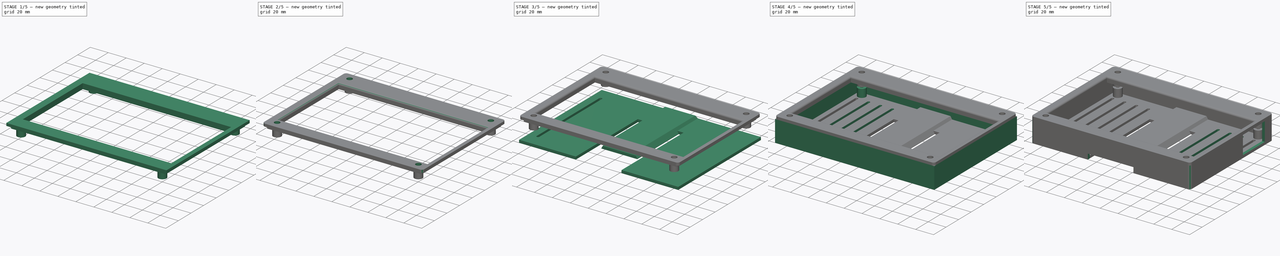
[diagram: build sequence overview — one tinted view per stage of 5, left to right]
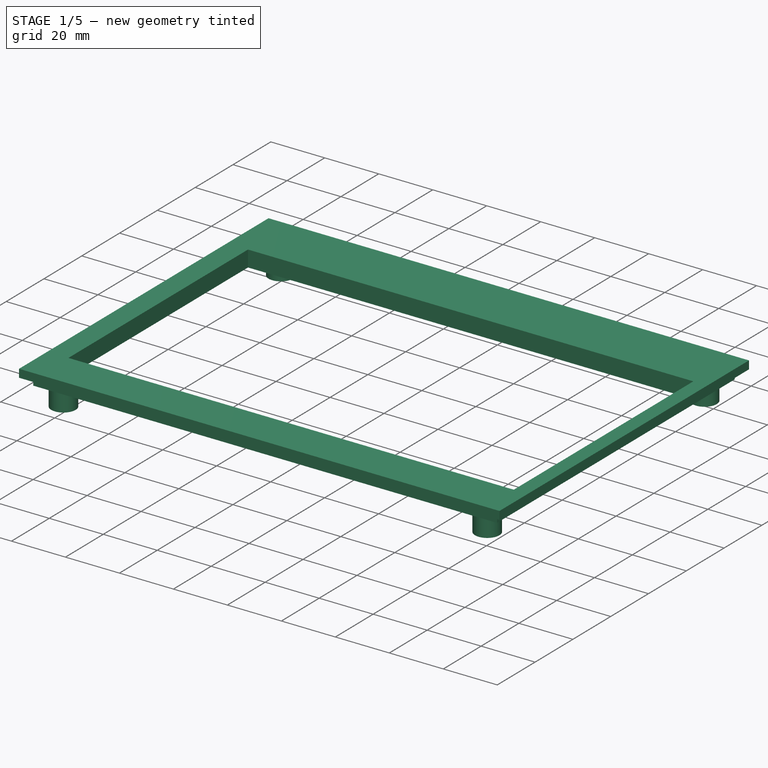
[diagram: stage 1 of 5 — iso view after this stage's code; geometry added in this stage tinted green]
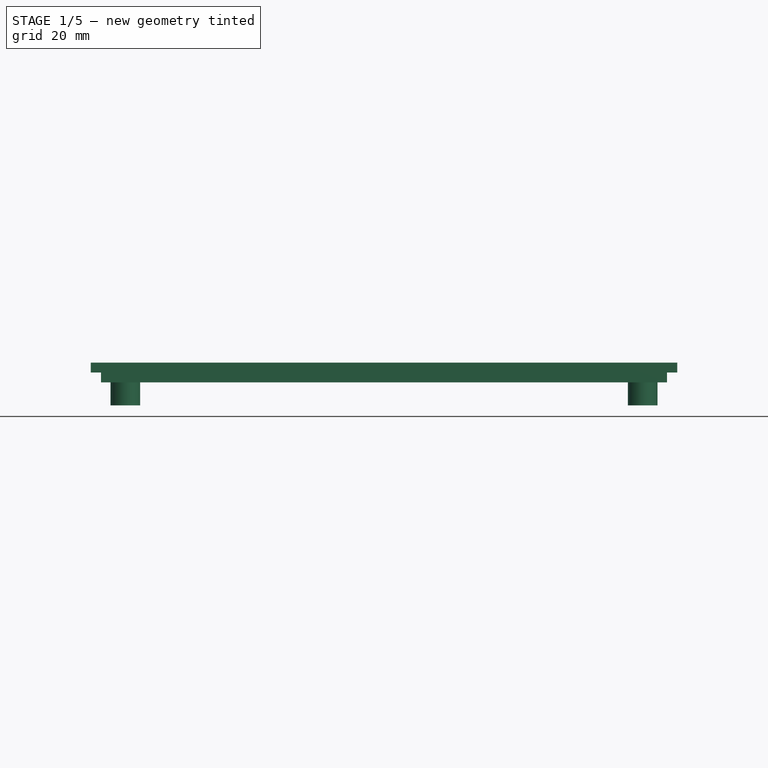
[diagram: stage 1 of 5 — front view after this stage's code; geometry added in this stage tinted green]
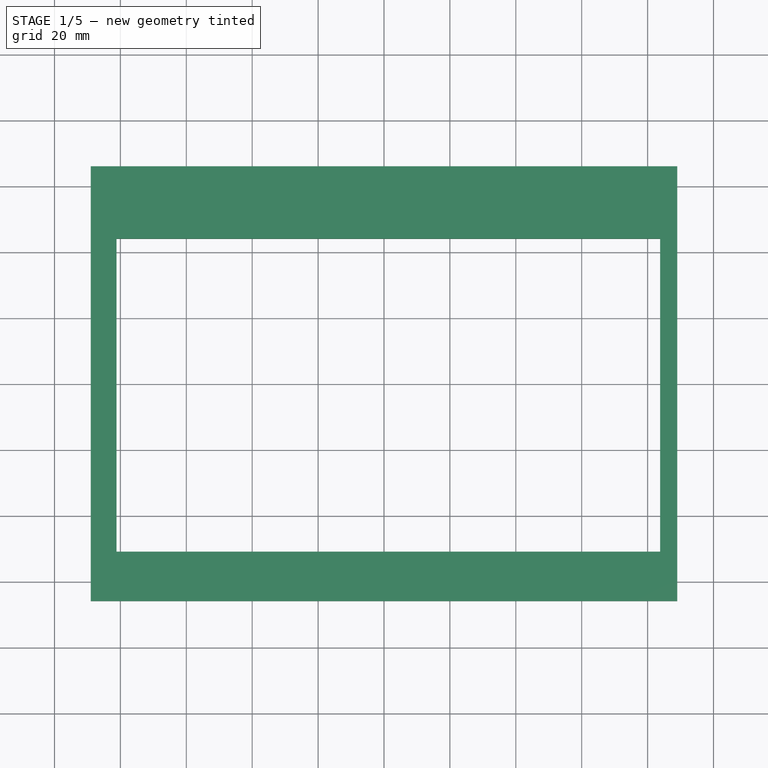
[diagram: stage 1 of 5 — top view after this stage's code; geometry added in this stage tinted green]
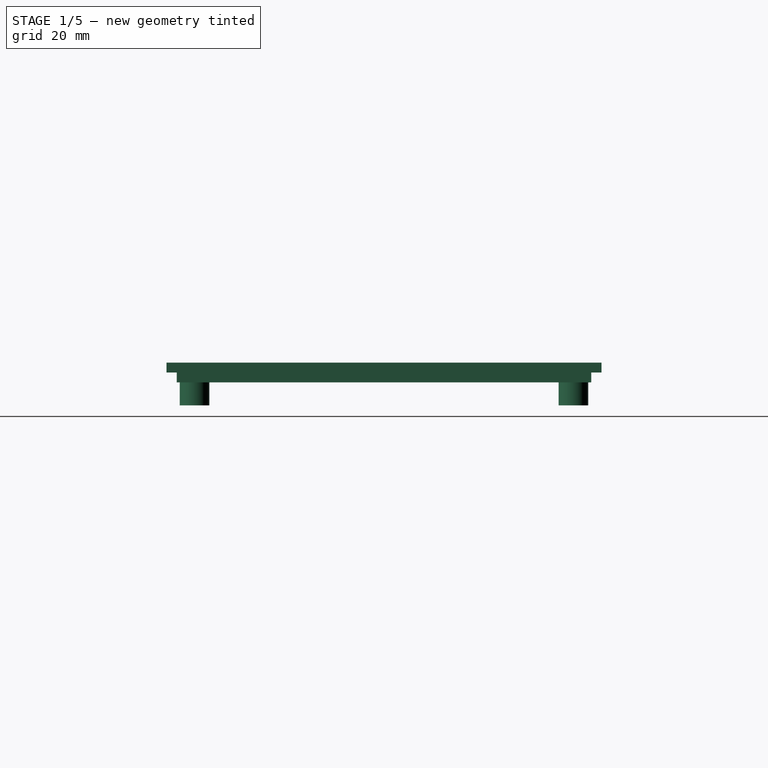
[diagram: stage 1 of 5 — right view after this stage's code; geometry added in this stage tinted green]
FCSTD DOCUMENT  (FreeCAD 0.20R29177 +426 (Git))
Label: Large Display Mount
Comment: Coffee Roaster V2 Large Display Mount
License: All rights reserved
LicenseURL: http://en.wikipedia.org/wiki/All_rights_reserved
objects: Sketcher::SketchObject×14, PartDesign::Pad×7, PartDesign::Pocket×7, PartDesign::Fillet×3, PartDesign::LinearPattern×2, PartDesign::Body×2, PartDesign::Chamfer×1
note: 54 computed .brp shape members not serialized (recipe doc carries the construction recipe); baked Part::Feature solids carry a one-line shape summary decoded from their .brp

FEATURE [PartDesign::Body] Body
  Group = -> [Sketch,Pad,Chamfer,Sketch001,Pad001,Sketch004,Pocket001,LinearPattern,Sketch006,Sketch007,Pad003,Sketch008,Pad004,Sketch009,Pocket002,LinearPattern001,Pocket,Sketch010,Pocket003,Fillet]
  Origin = -> Origin
  Tip = -> Fillet
FEATURE [Sketcher::SketchObject] Sketch011
  AttachmentOffset = pos=(0,0,24) rot=(0,0,1;0rad)
  FullyConstrained = true
  MapMode = 5
  Placement = pos=(0,0,24) rot=(0,0,1;0rad)
  Support = -> [XY_Plane001]
  sketch-geometry (4):
    g0: LineSegment StartX=-89 StartY=66 StartZ=0 EndX=89 EndY=66 EndZ=0
    g1: LineSegment StartX=89 StartY=66 StartZ=0 EndX=89 EndY=-66 EndZ=0
    g2: LineSegment StartX=89 StartY=-66 StartZ=0 EndX=-89 EndY=-66 EndZ=0
    g3: LineSegment StartX=-89 StartY=-66 StartZ=0 EndX=-89 EndY=66 EndZ=0
  constraints (11):
    c: Coincident(g0,g1)
    c: Coincident(g1,g2)
    c: Coincident(g2,g3)
    c: Coincident(g3,g0)
    c: Horizontal(g0)
    c: Horizontal(g2)
    c: Vertical(g1)
    c: Vertical(g3)
    c: DistanceX(g2,g2) = 178
    c: DistanceY(g1,g1) = 132
    c: Symmetric(g1,g0,g-1)
FEATURE [PartDesign::Pad] Pad005
  Direction = (0,0,1)
  Length = 3
  Length2 = 10
  Profile = -> Sketch011
  ReferenceAxis = -> Sketch011 [N_Axis]
  Type = 0
FEATURE [Sketcher::SketchObject] Sketch012
  ExternalGeometry = -> [Pad005]
  FullyConstrained = true
  MapMode = 5
  Placement = pos=(0,0,24) rot=(1,0,0;3.14159rad)
  Support = -> [Pad005]
  sketch-geometry (4):
    g0: LineSegment StartX=-85.9 StartY=62.9 StartZ=0 EndX=85.9 EndY=62.9 EndZ=0
    g1: LineSegment StartX=85.9 StartY=62.9 StartZ=0 EndX=85.9 EndY=-62.9 EndZ=0
    g2: LineSegment StartX=85.9 StartY=-62.9 StartZ=0 EndX=-85.9 EndY=-62.9 EndZ=0
    g3: LineSegment StartX=-85.9 StartY=-62.9 StartZ=0 EndX=-85.9 EndY=62.9 EndZ=0
  constraints (11):
    c: Coincident(g0,g1)
    c: Coincident(g1,g2)
    c: Coincident(g2,g3)
    c: Coincident(g3,g0)
    c: Horizontal(g0)
    c: Horizontal(g2)
    c: Vertical(g1)
    c: Vertical(g3)
    c: DistanceX(g-3,g0) = 3.1
    c: DistanceY(g0,g-3) = 3.1
    c: Symmetric(g0,g1,g-1)
FEATURE [PartDesign::Pad] Pad006
  BaseFeature = -> Pad005
  Direction = (0,0,-1)
  Length = 3
  Length2 = 10
  Profile = -> Sketch012
  ReferenceAxis = -> Sketch012 [N_Axis]
  Type = 0
FEATURE [Sketcher::SketchObject] Sketch013
  ExternalGeometry = -> [Pad006]
  FullyConstrained = true
  MapMode = 5
  Placement = pos=(0,0,27) rot=(0,0,1;0rad)
  Support = -> [Pad006]
  sketch-geometry (4):
    g0: LineSegment StartX=-81.2 StartY=44 StartZ=0 EndX=83.8 EndY=44 EndZ=0
    g1: LineSegment StartX=83.8 StartY=44 StartZ=0 EndX=83.8 EndY=-51 EndZ=0
    g2: LineSegment StartX=83.8 StartY=-51 StartZ=0 EndX=-81.2 EndY=-51 EndZ=0
    g3: LineSegment StartX=-81.2 StartY=-51 StartZ=0 EndX=-81.2 EndY=44 EndZ=0
  constraints (12):
    c: Coincident(g0,g1)
    c: Coincident(g1,g2)
    c: Coincident(g2,g3)
    c: Coincident(g3,g0)
    c: Horizontal(g0)
    c: Horizontal(g2)
    c: Vertical(g1)
    c: Vertical(g3)
    c: DistanceX(g0,g-3) = 5.2
    c: DistanceX(g-4,g0) = 7.8
    c: DistanceY(g0,g-3) = 22
    c: DistanceY(g1,g1) = 95
FEATURE [PartDesign::Pocket] Pocket004
  BaseFeature = -> Pad006
  Direction = (0,0,-1)
  Length = 6
  Length2 = 5
  Profile = -> Sketch013
  ReferenceAxis = -> Sketch013 [N_Axis]
  Type = 0
FEATURE [Sketcher::SketchObject] Sketch014
  FullyConstrained = true
  MapMode = 5
  Placement = pos=(0,0,21) rot=(1,0,0;3.14159rad)
  Support = -> [Pocket004]
  sketch-geometry (8):
    g0: Circle CenterX=-78.5 CenterY=57.5 CenterZ=0 NormalX=0 NormalY=0 NormalZ=1 AngleXU=0 Radius=1.75
    g1: Circle CenterX=78.5 CenterY=57.5 CenterZ=0 NormalX=0 NormalY=0 NormalZ=1 AngleXU=0 Radius=1.75
    g2: Circle CenterX=78.5 CenterY=-57.5 CenterZ=0 NormalX=0 NormalY=0 NormalZ=1 AngleXU=0 Radius=1.75
    g3: Circle CenterX=-78.5 CenterY=-57.5 CenterZ=0 NormalX=0 NormalY=0 NormalZ=1 AngleXU=0 Radius=1.75
    g4: Circle CenterX=-78.5 CenterY=57.5 CenterZ=0 NormalX=0 NormalY=0 NormalZ=1 AngleXU=0 Radius=4.5
    g5: Circle CenterX=78.5 CenterY=57.5 CenterZ=0 NormalX=0 NormalY=0 NormalZ=1 AngleXU=0 Radius=4.5
    g6: Circle CenterX=-78.5 CenterY=-57.5 CenterZ=0 NormalX=0 NormalY=0 NormalZ=1 AngleXU=0 Radius=4.5
    g7: Circle CenterX=78.5 CenterY=-57.5 CenterZ=0 NormalX=0 NormalY=0 NormalZ=1 AngleXU=0 Radius=4.5
  constraints (19):
    c: Coincident(g4,g0)
    c: Coincident(g5,g1)
    c: Coincident(g6,g3)
    c: Coincident(g7,g2)
    c: Equal(g4,g5)
    c: Equal(g5,g7)
    c: Equal(g7,g6)
    c: Equal(g0,g1)
    c: Equal(g1,g3)
    c: Equal(g3,g2)
    c: Diameter(g0) = 3.5
    c: Diameter(g4) = 9
    c: Vertical(g3,g0)
    c: Horizontal(g0,g1)
    c: Horizontal(g3,g2)
    c: Vertical(g2,g1)
    c: Symmetric(g3,g1,g-1)
    c: DistanceX(g0,g1) = 157
    c: DistanceY(g2,g1) = 115
FEATURE [PartDesign::Pad] Pad007
  BaseFeature = -> Pocket004
  Direction = (0,0,-1)
  Length = 7
  Length2 = 10
  Profile = -> Sketch014
  ReferenceAxis = -> Sketch014 [N_Axis]
  Type = 0
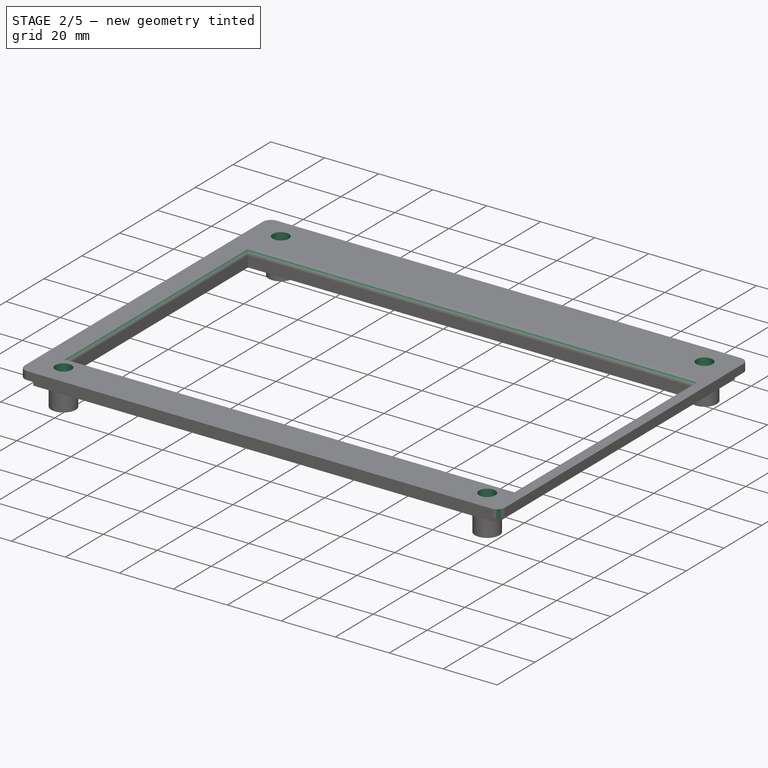
[diagram: stage 2 of 5 — iso view after this stage's code; geometry added in this stage tinted green]
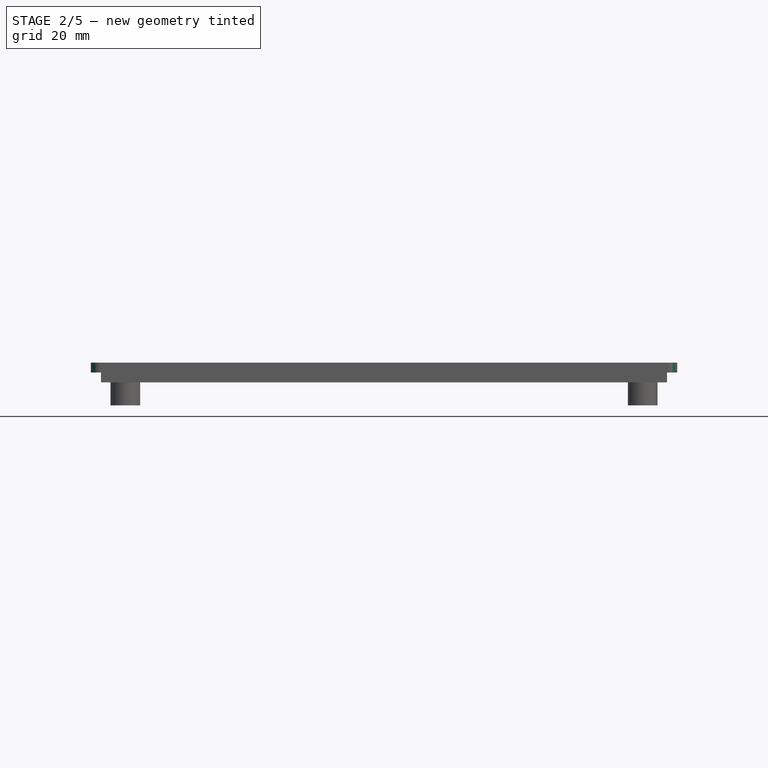
[diagram: stage 2 of 5 — front view after this stage's code; geometry added in this stage tinted green]
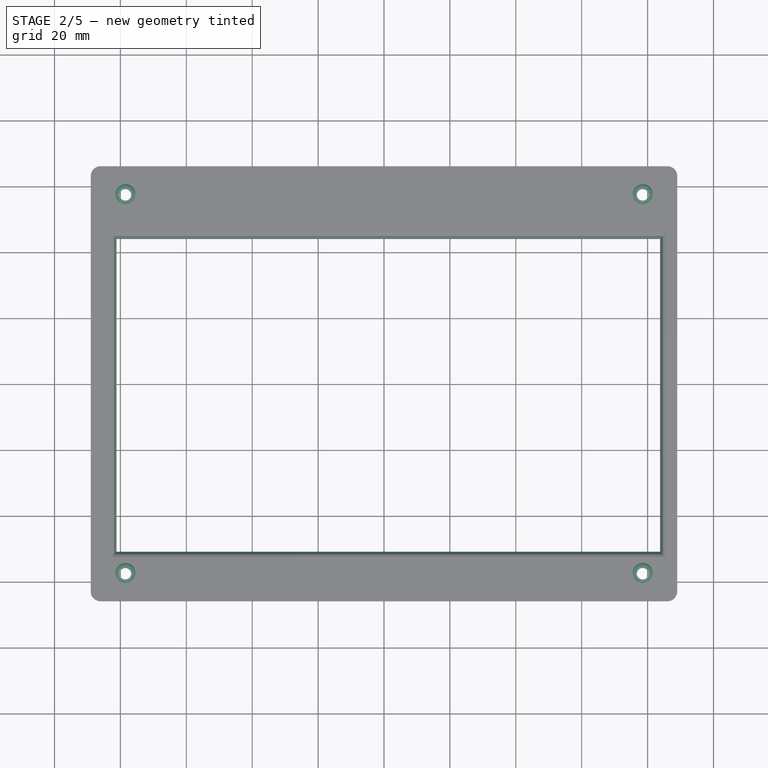
[diagram: stage 2 of 5 — top view after this stage's code; geometry added in this stage tinted green]
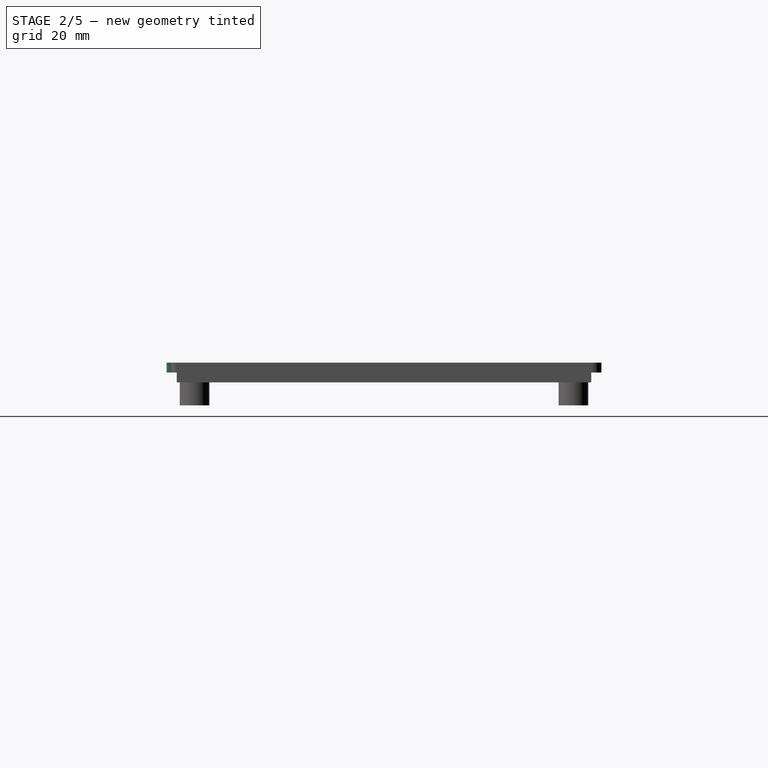
[diagram: stage 2 of 5 — right view after this stage's code; geometry added in this stage tinted green]
FEATURE [Sketcher::SketchObject] Sketch015
  FullyConstrained = true
  MapMode = 5
  Placement = pos=(0,0,27) rot=(0,0,1;0rad)
  Support = -> [Pad007]
  sketch-geometry (4):
    g0: Circle CenterX=-78.5 CenterY=57.5 CenterZ=0 NormalX=0 NormalY=0 NormalZ=1 AngleXU=0 Radius=1.75
    g1: Circle CenterX=78.5 CenterY=57.5 CenterZ=0 NormalX=0 NormalY=0 NormalZ=1 AngleXU=0 Radius=1.75
    g2: Circle CenterX=-78.5 CenterY=-57.5 CenterZ=0 NormalX=0 NormalY=0 NormalZ=1 AngleXU=0 Radius=1.75
    g3: Circle CenterX=78.5 CenterY=-57.5 CenterZ=0 NormalX=0 NormalY=0 NormalZ=1 AngleXU=0 Radius=1.75
  constraints (11):
    c: Equal(g0,g1)
    c: Equal(g1,g2)
    c: Equal(g2,g3)
    c: Diameter(g0) = 3.5
    c: Vertical(g0,g2)
    c: Horizontal(g0,g1)
    c: Vertical(g1,g3)
    c: Symmetric(g0,g3,g-1)
    c: DistanceX(g0,g1) = 157
    c: DistanceY(g2,g0) = 115
    c: Horizontal(g2,g3)
FEATURE [PartDesign::Pocket] Pocket005
  BaseFeature = -> Pad007
  Direction = (0,0,-1)
  Length = 6
  Length2 = 5
  Profile = -> Sketch015
  ReferenceAxis = -> Sketch015 [N_Axis]
  Type = 0
FEATURE [PartDesign::Fillet] Fillet001
  Base = -> Pocket005 [Edge8,Edge2,Edge1,Edge5]
  BaseFeature = -> Pocket005
  Radius = 3
  SupportTransform = false
  UseAllEdges = false
FEATURE [Sketcher::SketchObject] Sketch016
  FullyConstrained = true
  MapMode = 5
  Placement = pos=(0,0,27) rot=(0,0,1;0rad)
  Support = -> [Fillet001]
  sketch-geometry (4):
    g0: Circle CenterX=-78.5 CenterY=57.5 CenterZ=0 NormalX=0 NormalY=0 NormalZ=1 AngleXU=0 Radius=3
    g1: Circle CenterX=78.5 CenterY=57.5 CenterZ=0 NormalX=0 NormalY=0 NormalZ=1 AngleXU=0 Radius=3
    g2: Circle CenterX=78.5 CenterY=-57.5 CenterZ=0 NormalX=0 NormalY=0 NormalZ=1 AngleXU=0 Radius=3
    g3: Circle CenterX=-78.5 CenterY=-57.5 CenterZ=0 NormalX=0 NormalY=0 NormalZ=1 AngleXU=0 Radius=3
  constraints (11):
    c: Equal(g0,g1)
    c: Equal(g1,g3)
    c: Equal(g3,g2)
    c: Horizontal(g0,g1)
    c: Vertical(g1,g2)
    c: Horizontal(g3,g2)
    c: Vertical(g3,g0)
    c: Symmetric(g0,g2,g-1)
    c: DistanceX(g0,g1) = 157
    c: DistanceY(g2,g1) = 115
    c: Diameter(g0) = 6
FEATURE [PartDesign::Pocket] Pocket006
  BaseFeature = -> Fillet001
  Direction = (0,0,-1)
  Length = 10
  Length2 = 5
  Profile = -> Sketch016
  ReferenceAxis = -> Sketch016 [N_Axis]
  Type = 0
FEATURE [PartDesign::Fillet] Fillet002
  Base = -> Pocket006 [Edge28,Edge27,Edge29,Edge30]
  BaseFeature = -> Pocket006
  Radius = 2
  SupportTransform = false
  UseAllEdges = false
FEATURE [PartDesign::Body] Body001  label="Front Face"
  Group = -> [Sketch011,Pad005,Sketch012,Pad006,Sketch013,Pocket004,Sketch014,Pad007,Sketch015,Pocket005,Fillet001,Sketch016,Pocket006,Fillet002]
  Origin = -> Origin001
  Tip = -> Fillet002
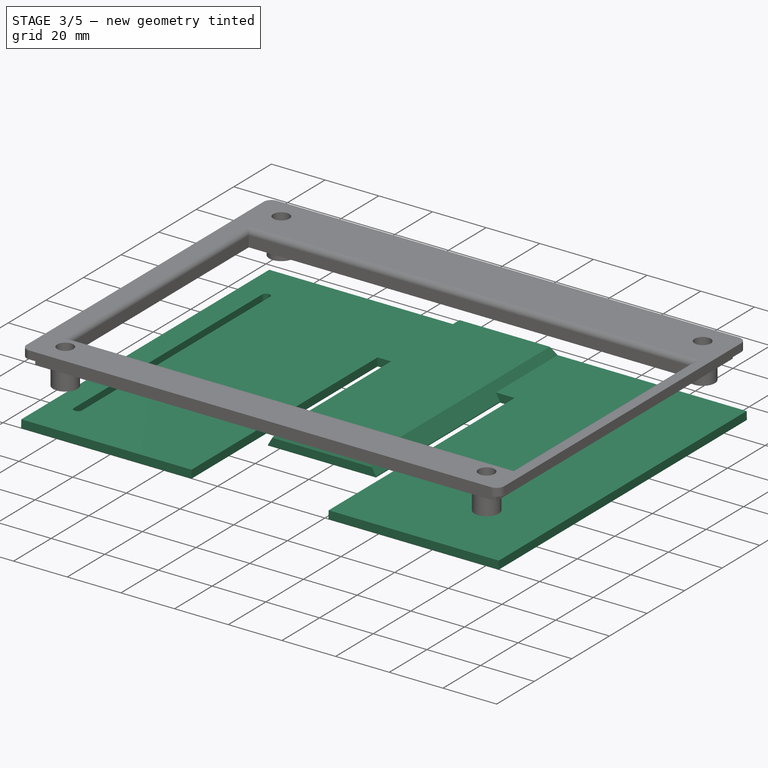
[diagram: stage 3 of 5 — iso view after this stage's code; geometry added in this stage tinted green]
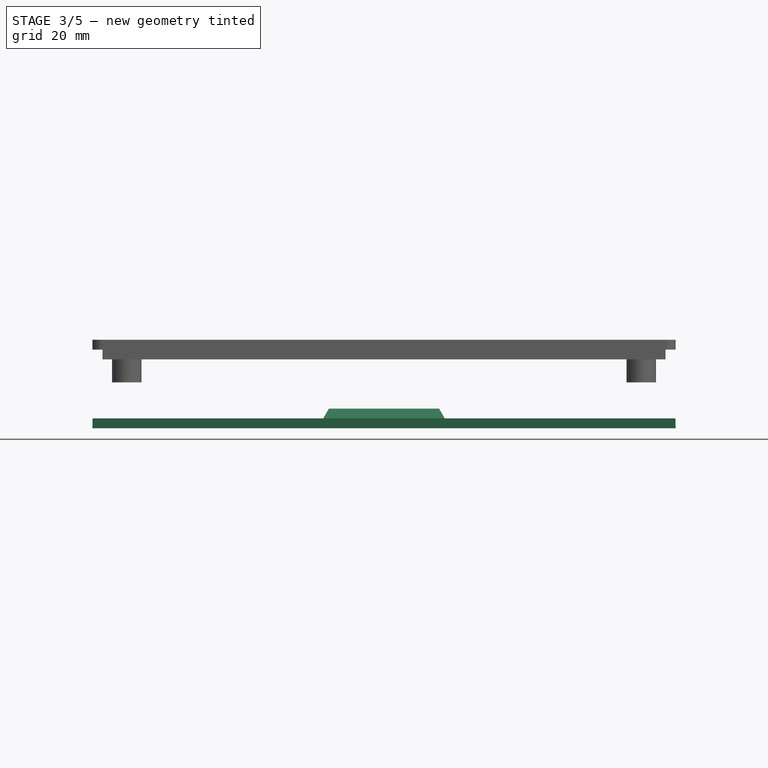
[diagram: stage 3 of 5 — front view after this stage's code; geometry added in this stage tinted green]
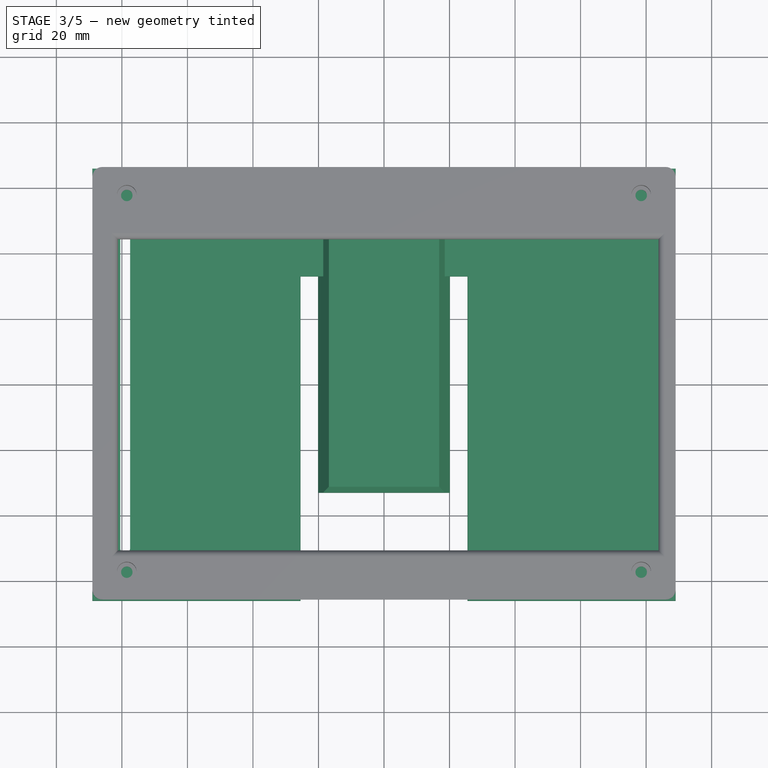
[diagram: stage 3 of 5 — top view after this stage's code; geometry added in this stage tinted green]
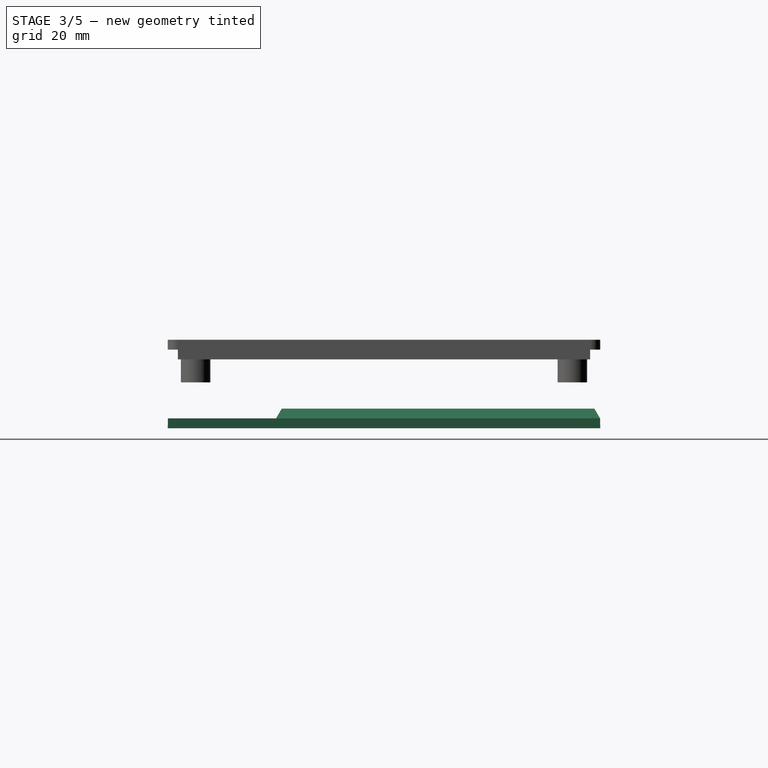
[diagram: stage 3 of 5 — right view after this stage's code; geometry added in this stage tinted green]
FEATURE [Sketcher::SketchObject] Sketch
  FullyConstrained = true
  MapMode = 5
  Support = -> [XY_Plane]
  sketch-geometry (12):
    g0: LineSegment StartX=-89 StartY=66 StartZ=0 EndX=89 EndY=66 EndZ=0
    g1: LineSegment StartX=89 StartY=66 StartZ=0 EndX=89 EndY=-66 EndZ=0
    g2: LineSegment StartX=89 StartY=-66 StartZ=0 EndX=-89 EndY=-66 EndZ=0
    g3: LineSegment StartX=-89 StartY=-66 StartZ=0 EndX=-89 EndY=66 EndZ=0
    g4: LineSegment StartX=-25.5 StartY=33 StartZ=0 EndX=-20.1 EndY=33 EndZ=0
    g5: LineSegment StartX=-20.1 StartY=33 StartZ=0 EndX=-20.1 EndY=-33 EndZ=0
    g6: LineSegment StartX=-20.1 StartY=-33 StartZ=0 EndX=20.1 EndY=-33 EndZ=0
    g7: LineSegment StartX=20.1 StartY=-33 StartZ=0 EndX=20.1 EndY=33 EndZ=0
    g8: LineSegment StartX=20.1 StartY=33 StartZ=0 EndX=25.5 EndY=33 EndZ=0
    g9: LineSegment StartX=25.5 StartY=33 StartZ=0 EndX=25.5 EndY=-66 EndZ=0
    g10: LineSegment StartX=25.5 StartY=-66 StartZ=0 EndX=-25.5 EndY=-66 EndZ=0
    g11: LineSegment StartX=-25.5 StartY=-66 StartZ=0 EndX=-25.5 EndY=33 EndZ=0
  constraints (31):
    c: Coincident(g0,g1)
    c: Coincident(g1,g2)
    c: Coincident(g2,g3)
    c: Coincident(g3,g0)
    c: Horizontal(g2)
    c: Vertical(g3)
    c: DistanceX(g0,g0) = 178
    c: DistanceY(g1,g1) = 132
    c: Symmetric(g0,g0,g-2)
    c: Symmetric(g0,g1,g-1)
    c: Coincident(g4,g5)
    c: Vertical(g5)
    c: Coincident(g5,g6)
    c: Coincident(g6,g7)
    c: Coincident(g7,g8)
    c: Horizontal(g8)
    c: Coincident(g8,g9)
    c: Vertical(g9)
    c: Coincident(g9,g10)
    c: Horizontal(g10)
    c: Coincident(g10,g11)
    c: Coincident(g11,g4)
    c: DistanceX(g4,g7) = 40.2
    c: DistanceX(g4,g8) = 51
    c: Horizontal(g4)
    c: Vertical(g11)
    c: Symmetric(g4,g8,g-2)
    c: DistanceY(g7,g7) = 66
    c: Symmetric(g7,g6,g-1)
    c: Horizontal(g9,g1)
    c: Symmetric(g5,g6,g-2)
FEATURE [PartDesign::Pad] Pad  label="Base Pad"
  Direction = (0,0,1)
  Length = 3
  Length2 = 10
  Profile = -> Sketch
  ReferenceAxis = -> Sketch [N_Axis]
  TaperAngle = -1
  Type = 0
FEATURE [PartDesign::Chamfer] Chamfer  label="Tongue Chamfer"
  Angle = 60
  Base = -> Pad [Edge21,Edge23]
  BaseFeature = -> Pad
  ChamferType = 2
  FlipDirection = false
  Size = 1.5
  Size2 = 1
  SupportTransform = false
  UseAllEdges = false
FEATURE [Sketcher::SketchObject] Sketch001
  ExternalGeometry = -> [Chamfer]
  FullyConstrained = true
  MapMode = 5
  Placement = pos=(0,0,3) rot=(0,0,1;0rad)
  Support = -> [Chamfer]
  sketch-geometry (4):
    g0: LineSegment StartX=-18.5476 StartY=-32.9476 StartZ=0 EndX=18.5476 EndY=-32.9476 EndZ=0
    g1: LineSegment StartX=18.5476 StartY=-32.9476 StartZ=0 EndX=18.5476 EndY=65.9476 EndZ=0
    g2: LineSegment StartX=18.5476 StartY=65.9476 StartZ=0 EndX=-18.5476 EndY=65.9476 EndZ=0
    g3: LineSegment StartX=-18.5476 StartY=65.9476 StartZ=0 EndX=-18.5476 EndY=-32.9476 EndZ=0
  constraints (10):
    c: Coincident(g0,g1)
    c: Coincident(g1,g2)
    c: Coincident(g2,g3)
    c: Coincident(g3,g0)
    c: Horizontal(g2)
    c: Vertical(g1)
    c: Vertical(g3)
    c: Coincident(g0,g-3)
    c: Coincident(g-4,g0)
    c: Horizontal(g2,g-5)
FEATURE [PartDesign::Pad] Pad001  label="Tongue Pad"
  BaseFeature = -> Chamfer
  Direction = (0,0,1)
  Length = 3
  Length2 = 10
  Profile = -> Sketch001
  ReferenceAxis = -> Sketch001 [N_Axis]
  TaperAngle = -30
  Type = 0
FEATURE [Sketcher::SketchObject] Sketch004
  FullyConstrained = true
  MapMode = 5
  Support = -> [XY_Plane]
  sketch-geometry (4):
    g0: ArcOfCircle CenterX=-79 CenterY=50 CenterZ=0 NormalX=0 NormalY=0 NormalZ=1 AngleXU=0 Radius=1.5 StartAngle=2.1e-15 EndAngle=3.14159
    g1: ArcOfCircle CenterX=-79 CenterY=-50 CenterZ=0 NormalX=0 NormalY=0 NormalZ=1 AngleXU=0 Radius=1.5 StartAngle=3.14159 EndAngle=6.28319
    g2: LineSegment StartX=-80.5 StartY=50 StartZ=0 EndX=-80.5 EndY=-50 EndZ=0
    g3: LineSegment StartX=-77.5 StartY=-50 StartZ=0 EndX=-77.5 EndY=50 EndZ=0
  constraints (9):
    c: Tangent(g0,g2) = -1.5708
    c: Tangent(g2,g1) = -1.5708
    c: Tangent(g1,g3) = -1.5708
    c: Tangent(g3,g0) = -1.5708
    c: Equal(g0,g1)
    c: DistanceX(g1,g1) = 3
    c: DistanceY(g3,g3) = 100
    c: Symmetric(g0,g1,g-1)
    c: DistanceX(g1,g-1) = 79
FEATURE [PartDesign::Pocket] Pocket001  label="Left Vent Hole Pocket"
  BaseFeature = -> Pad001
  Direction = (0,0,-1)
  Length = 5
  Length2 = 5
  Profile = -> Sketch004
  ReferenceAxis = -> Sketch004 [N_Axis]
  Reversed = true
  Type = 0
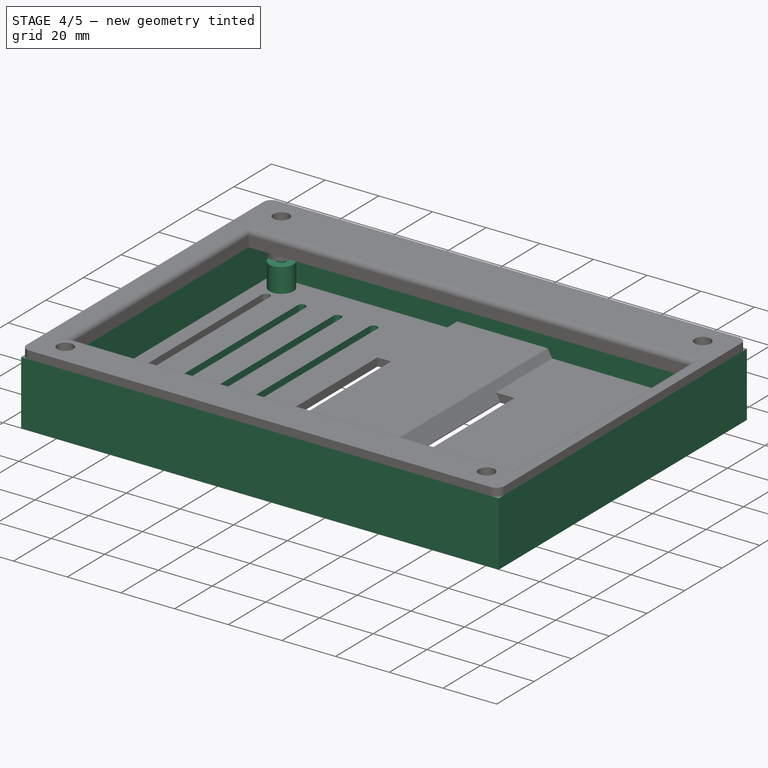
[diagram: stage 4 of 5 — iso view after this stage's code; geometry added in this stage tinted green]
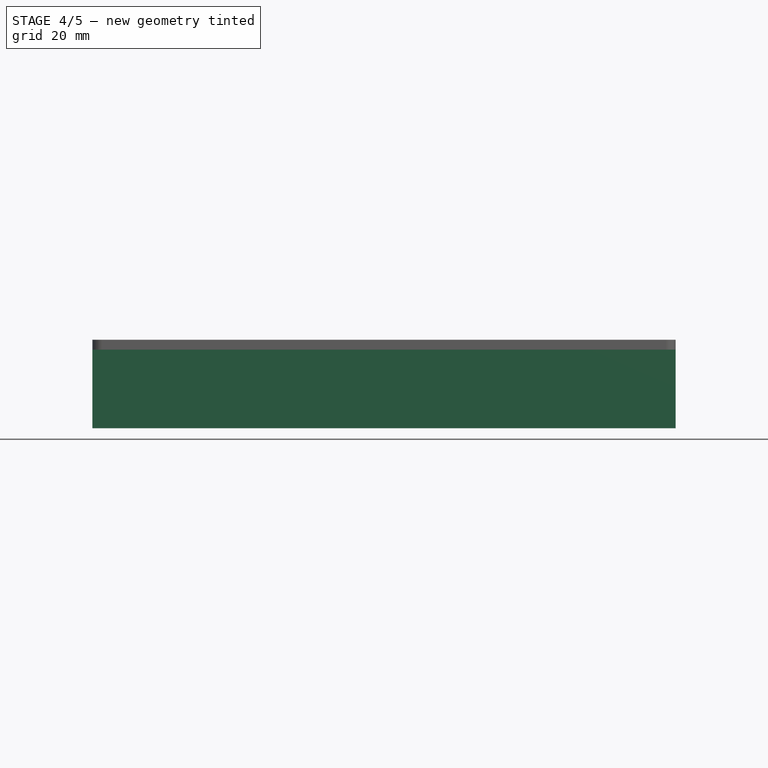
[diagram: stage 4 of 5 — front view after this stage's code; geometry added in this stage tinted green]
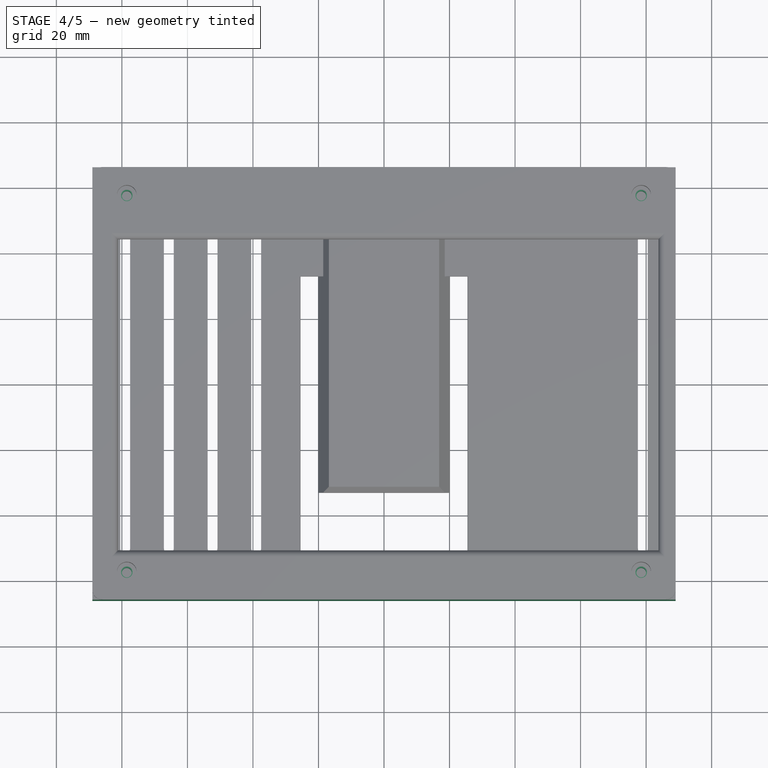
[diagram: stage 4 of 5 — top view after this stage's code; geometry added in this stage tinted green]
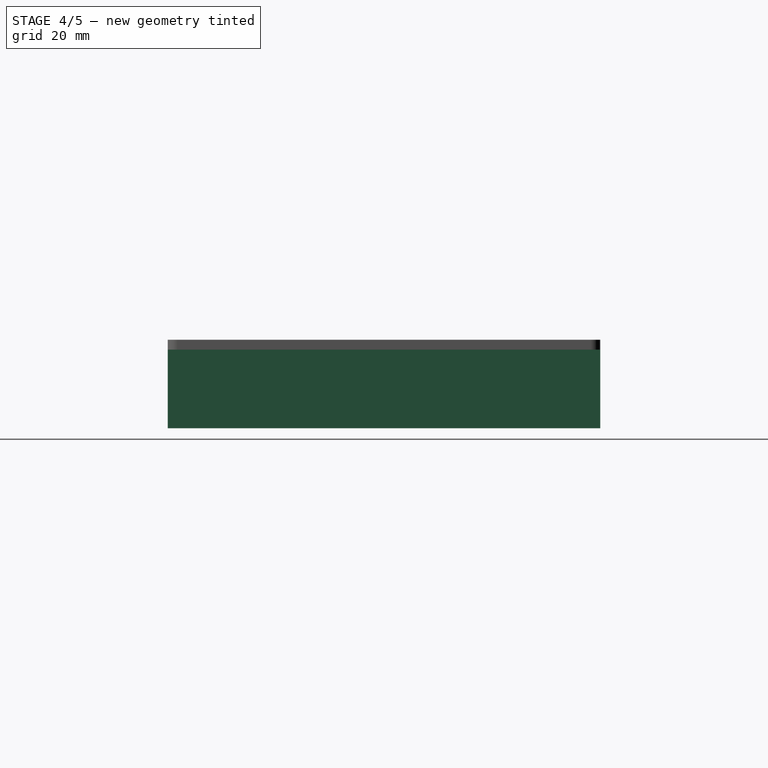
[diagram: stage 4 of 5 — right view after this stage's code; geometry added in this stage tinted green]
FEATURE [PartDesign::LinearPattern] LinearPattern
  BaseFeature = -> Pocket001
  Direction = -> Sketch004 [H_Axis]
  Length = 40
  Occurrences = 4
  Originals = -> [Pocket001]
FEATURE [Sketcher::SketchObject] Sketch006
  FullyConstrained = true
  MapMode = 5
  Support = -> [XY_Plane]
  sketch-geometry (4):
    g0: ArcOfCircle CenterX=79 CenterY=50 CenterZ=0 NormalX=0 NormalY=0 NormalZ=1 AngleXU=0 Radius=1.5 StartAngle=0 EndAngle=3.14159
    g1: ArcOfCircle CenterX=79 CenterY=-50 CenterZ=0 NormalX=0 NormalY=0 NormalZ=1 AngleXU=0 Radius=1.5 StartAngle=3.14159 EndAngle=6.28319
    g2: LineSegment StartX=77.5 StartY=50 StartZ=0 EndX=77.5 EndY=-50 EndZ=0
    g3: LineSegment StartX=80.5 StartY=-50 StartZ=0 EndX=80.5 EndY=50 EndZ=0
  constraints (9):
    c: Tangent(g0,g2) = -1.5708
    c: Tangent(g2,g1) = -1.5708
    c: Tangent(g1,g3) = -1.5708
    c: Tangent(g3,g0) = -1.5708
    c: Equal(g0,g1)
    c: DistanceX(g0,g0) = 3
    c: DistanceY(g1,g0) = 100
    c: Symmetric(g1,g0,g-1)
    c: DistanceX(g-1,g1) = 79
FEATURE [Sketcher::SketchObject] Sketch007
  AttachmentOffset = pos=(0,0,3) rot=(0,0,1;0rad)
  FullyConstrained = true
  MapMode = 5
  Placement = pos=(0,0,3) rot=(0,0,1;0rad)
  Support = -> [XY_Plane]
  sketch-geometry (8):
    g0: Circle CenterX=-78.5 CenterY=57.5 CenterZ=0 NormalX=0 NormalY=0 NormalZ=1 AngleXU=0 Radius=4.5
    g1: Circle CenterX=78.5 CenterY=57.5 CenterZ=0 NormalX=0 NormalY=0 NormalZ=1 AngleXU=0 Radius=4.5
    g2: Circle CenterX=78.5 CenterY=-57.5 CenterZ=0 NormalX=0 NormalY=0 NormalZ=1 AngleXU=0 Radius=4.5
    g3: Circle CenterX=-78.5 CenterY=-57.5 CenterZ=0 NormalX=0 NormalY=0 NormalZ=1 AngleXU=0 Radius=4.5
    g4: Circle CenterX=-78.5 CenterY=57.5 CenterZ=0 NormalX=0 NormalY=0 NormalZ=1 AngleXU=0 Radius=1.5
    g5: Circle CenterX=78.5 CenterY=57.5 CenterZ=0 NormalX=0 NormalY=0 NormalZ=1 AngleXU=0 Radius=1.5
    g6: Circle CenterX=78.5 CenterY=-57.5 CenterZ=0 NormalX=0 NormalY=0 NormalZ=1 AngleXU=0 Radius=1.5
    g7: Circle CenterX=-78.5 CenterY=-57.5 CenterZ=0 NormalX=0 NormalY=0 NormalZ=1 AngleXU=0 Radius=1.5
  constraints (19):
    c: Equal(g0,g1)
    c: Equal(g1,g2)
    c: Equal(g2,g3)
    c: Horizontal(g0,g1)
    c: Horizontal(g3,g2)
    c: Vertical(g0,g3)
    c: Vertical(g1,g2)
    c: Symmetric(g0,g2,g-1)
    c: DistanceX(g0,g1) = 157
    c: DistanceY(g2,g1) = 115
    c: Diameter(g0) = 9
    c: Coincident(g4,g0)
    c: Diameter(g4) = 3
    c: Coincident(g5,g1)
    c: Equal(g4,g5)
    c: Equal(g7,g6)
    c: Equal(g6,g4)
    c: Coincident(g7,g3)
    c: Coincident(g6,g2)
FEATURE [PartDesign::Pad] Pad003  label="Display Mount Post Pads"
  BaseFeature = -> LinearPattern
  Direction = (0,0,1)
  Length = 9
  Length2 = 10
  Profile = -> Sketch007
  ReferenceAxis = -> Sketch007 [N_Axis]
  Type = 0
FEATURE [Sketcher::SketchObject] Sketch008
  ExternalGeometry = -> [Chamfer]
  FullyConstrained = true
  MapMode = 5
  Support = -> [XY_Plane]
  sketch-geometry (8):
    g0: LineSegment StartX=-89 StartY=66 StartZ=0 EndX=89 EndY=66 EndZ=0
    g1: LineSegment StartX=89 StartY=66 StartZ=0 EndX=89 EndY=-66 EndZ=0
    g2: LineSegment StartX=89 StartY=-66 StartZ=0 EndX=-89 EndY=-66 EndZ=0
    g3: LineSegment StartX=-89 StartY=-66 StartZ=0 EndX=-89 EndY=66 EndZ=0
    g4: LineSegment StartX=-86 StartY=63 StartZ=0 EndX=86 EndY=63 EndZ=0
    g5: LineSegment StartX=86 StartY=63 StartZ=0 EndX=86 EndY=-63 EndZ=0
    g6: LineSegment StartX=86 StartY=-63 StartZ=0 EndX=-86 EndY=-63 EndZ=0
    g7: LineSegment StartX=-86 StartY=-63 StartZ=0 EndX=-86 EndY=63 EndZ=0
  constraints (20):
    c: Coincident(g0,g1)
    c: Coincident(g1,g2)
    c: Coincident(g2,g3)
    c: Coincident(g3,g0)
    c: Horizontal(g0)
    c: Vertical(g1)
    c: Coincident(g0,g-6)
    c: Coincident(g2,g-3)
    c: Coincident(g1,g-4)
    c: Coincident(g4,g5)
    c: Coincident(g5,g6)
    c: Coincident(g6,g7)
    c: Coincident(g7,g4)
    c: Horizontal(g4)
    c: Horizontal(g6)
    c: Vertical(g5)
    c: Vertical(g7)
    c: DistanceX(g2,g6) = 3
    c: DistanceY(g2,g6) = 3
    c: Symmetric(g6,g4,g-1)
FEATURE [PartDesign::Pad] Pad004  label="Wall Pad"
  BaseFeature = -> Pad003
  Direction = (0,0,1)
  Length = 24
  Length2 = 10
  Profile = -> Sketch008
  ReferenceAxis = -> Sketch008 [N_Axis]
  Type = 0
FEATURE [PartDesign::Pocket] Pocket002  label="Right vent pocket"
  BaseFeature = -> Pad004
  Direction = (0,0,-1)
  Length = 3
  Length2 = 5
  Profile = -> Sketch006
  ReferenceAxis = -> Sketch006 [N_Axis]
  Reversed = true
  Type = 0
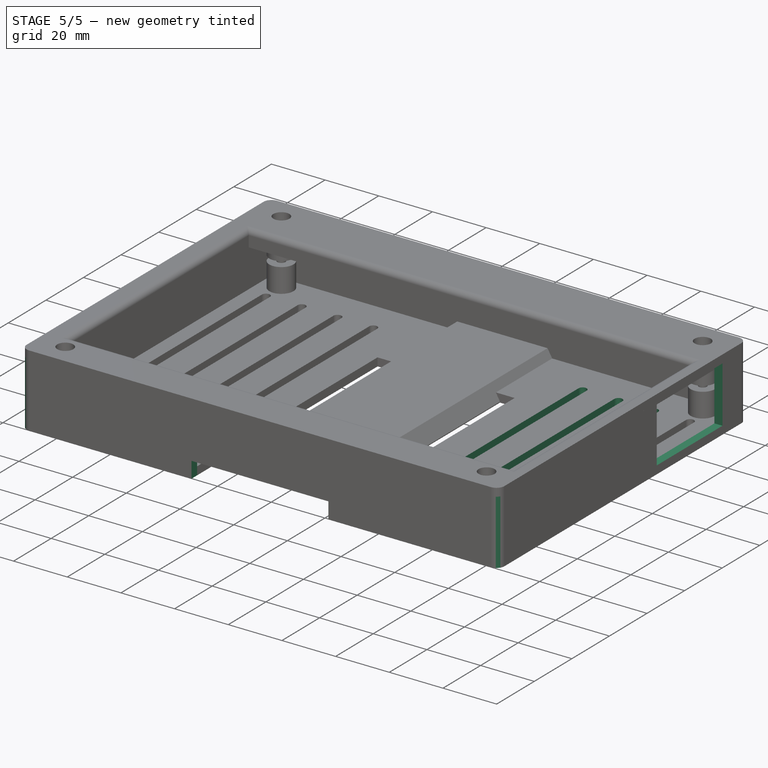
[diagram: stage 5 of 5 — iso view after this stage's code; geometry added in this stage tinted green]
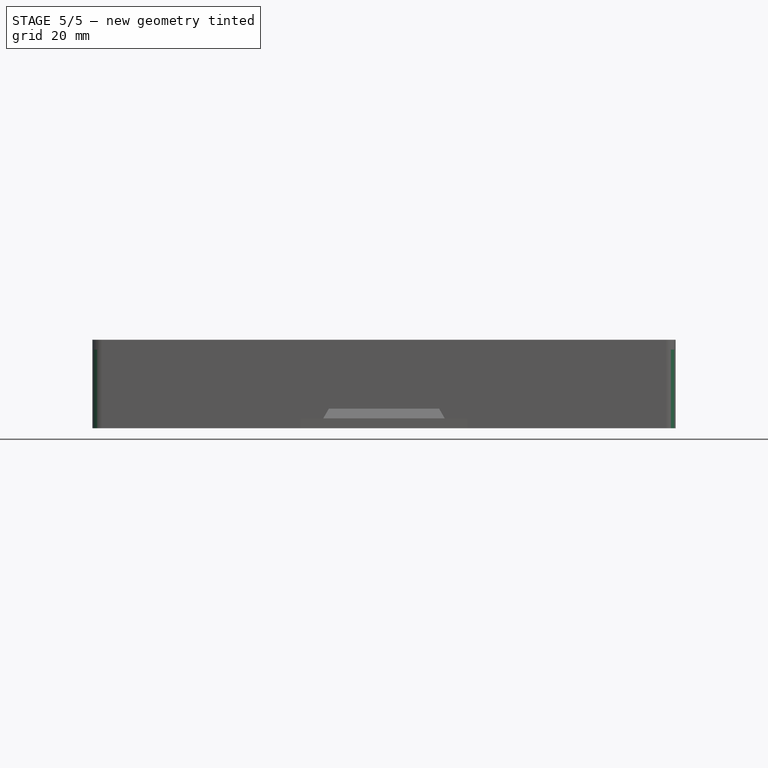
[diagram: stage 5 of 5 — front view after this stage's code; geometry added in this stage tinted green]
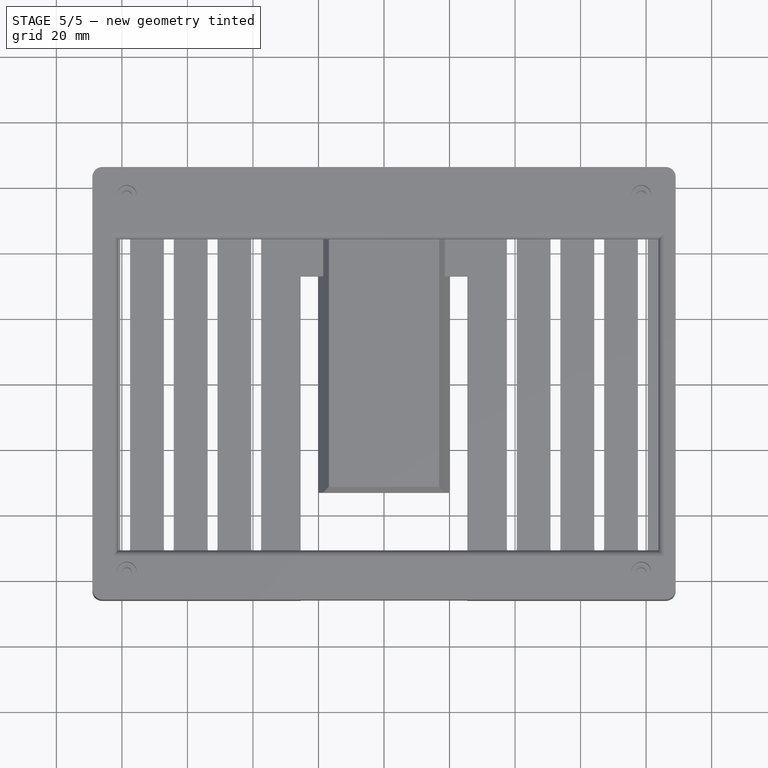
[diagram: stage 5 of 5 — top view after this stage's code; geometry added in this stage tinted green]
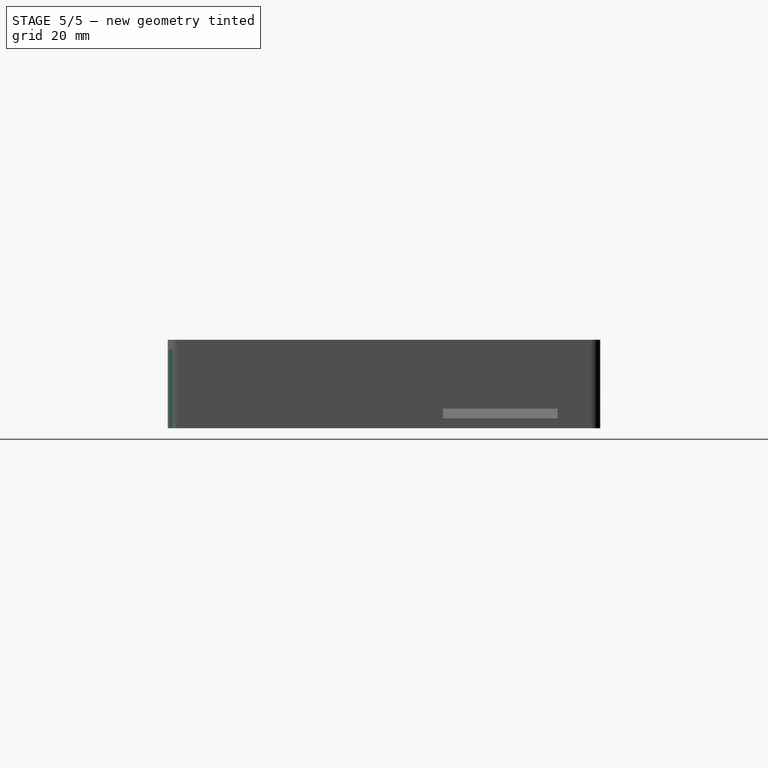
[diagram: stage 5 of 5 — right view after this stage's code; geometry added in this stage tinted green]
FEATURE [PartDesign::LinearPattern] LinearPattern001
  BaseFeature = -> Pocket002
  Direction = -> Sketch006 [H_Axis]
  Length = 40
  Occurrences = 4
  Originals = -> [Pocket002]
  Reversed = true
FEATURE [Sketcher::SketchObject] Sketch009
  AttachmentOffset = pos=(0,0,89) rot=(0,0,1;0rad)
  ExternalGeometry = -> [LinearPattern001]
  FullyConstrained = true
  MapMode = 5
  Placement = pos=(89,-1.98e-14,1.98e-14) rot=(0.57735,0.57735,0.57735;2.0944rad)
  Support = -> [YZ_Plane]
  sketch-geometry (4):
    g0: LineSegment StartX=18 StartY=24 StartZ=0 EndX=53 EndY=24 EndZ=0
    g1: LineSegment StartX=53 StartY=24 StartZ=0 EndX=53 EndY=3 EndZ=0
    g2: LineSegment StartX=53 StartY=3 StartZ=0 EndX=18 EndY=3 EndZ=0
    g3: LineSegment StartX=18 StartY=3 StartZ=0 EndX=18 EndY=24 EndZ=0
  constraints (12):
    c: Coincident(g0,g1)
    c: Coincident(g1,g2)
    c: Coincident(g2,g3)
    c: Coincident(g3,g0)
    c: Horizontal(g0)
    c: Horizontal(g2)
    c: Vertical(g1)
    c: Vertical(g3)
    c: DistanceX(g0,g0) = 35
    c: DistanceY(g1,g1) = 21
    c: DistanceX(g1,g-4) = 13
    c: DistanceY(g-4,g1) = 3
FEATURE [PartDesign::Pocket] Pocket  label="Cable Access Pocket"
  BaseFeature = -> LinearPattern001
  Direction = (-1,2e-16,-3e-16)
  Length = 3
  Length2 = 5
  Profile = -> Sketch009
  ReferenceAxis = -> Sketch009 [N_Axis]
  Type = 0
FEATURE [Sketcher::SketchObject] Sketch010
  AttachmentOffset = pos=(0,0,66) rot=(0,0,1;0rad)
  ExternalGeometry = -> [Pocket]
  FullyConstrained = true
  MapMode = 5
  Placement = pos=(0,-66,-1.47e-14) rot=(1,0,0;1.5708rad)
  Support = -> [XZ_Plane]
  sketch-geometry (4):
    g0: LineSegment StartX=-25.5 StartY=6 StartZ=0 EndX=25.5 EndY=6 EndZ=0
    g1: LineSegment StartX=25.5 StartY=6 StartZ=0 EndX=25.5 EndY=0 EndZ=0
    g2: LineSegment StartX=25.5 StartY=0 StartZ=0 EndX=-25.5 EndY=0 EndZ=0
    g3: LineSegment StartX=-25.5 StartY=0 StartZ=0 EndX=-25.5 EndY=6 EndZ=0
  constraints (11):
    c: Coincident(g0,g1)
    c: Coincident(g1,g2)
    c: Coincident(g2,g3)
    c: Coincident(g3,g0)
    c: Horizontal(g0)
    c: Vertical(g1)
    c: Vertical(g3)
    c: DistanceY(g1,g1) = 6
    c: Symmetric(g2,g1,g-2)
    c: DistanceX(g0,g0) = 51
    c: Horizontal(g-1,g1)
FEATURE [PartDesign::Pocket] Pocket003  label="Clearance hole"
  BaseFeature = -> Pocket
  Direction = (0,1,2e-16)
  Length = 3
  Length2 = 5
  Profile = -> Sketch010
  ReferenceAxis = -> Sketch010 [N_Axis]
  Type = 0
FEATURE [PartDesign::Fillet] Fillet
  Base = -> Pocket003 [Edge194,Edge196,Edge193,Edge195]
  BaseFeature = -> Pocket003
  Radius = 3
  SupportTransform = false
  UseAllEdges = false
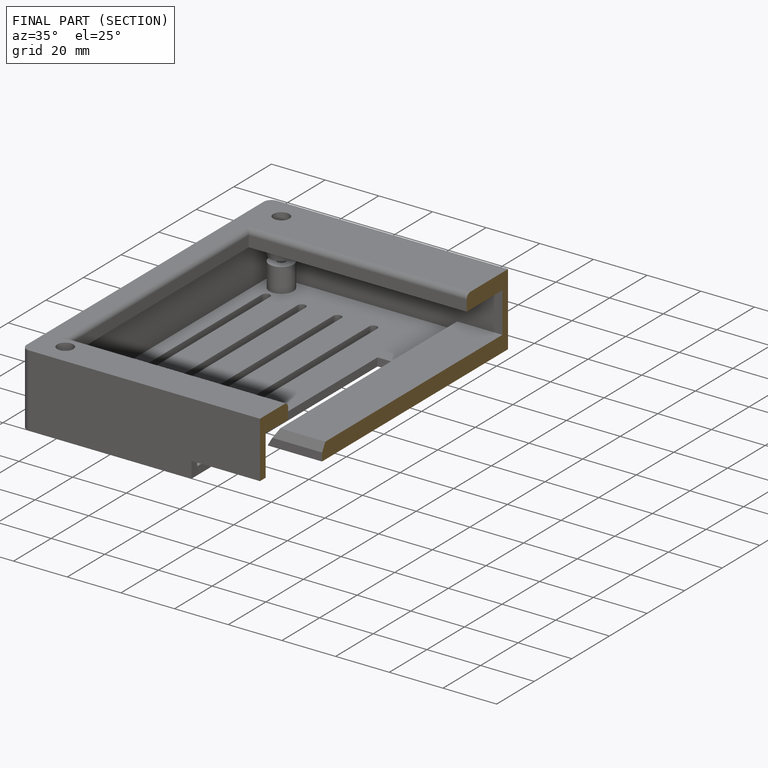
[diagram: finished part — half-section view (interior)]
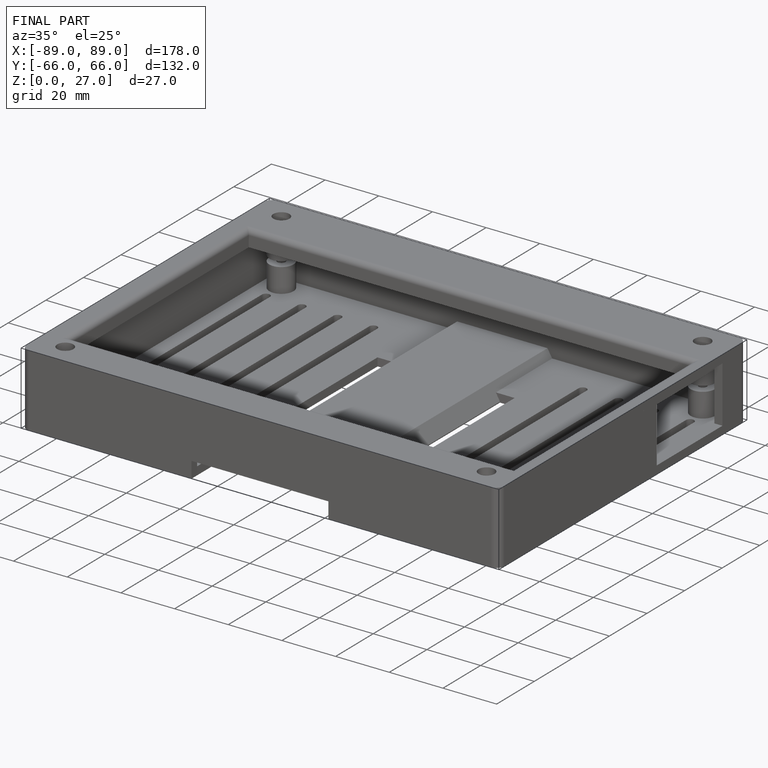
[diagram: finished part — iso view with bounding-box wireframe]
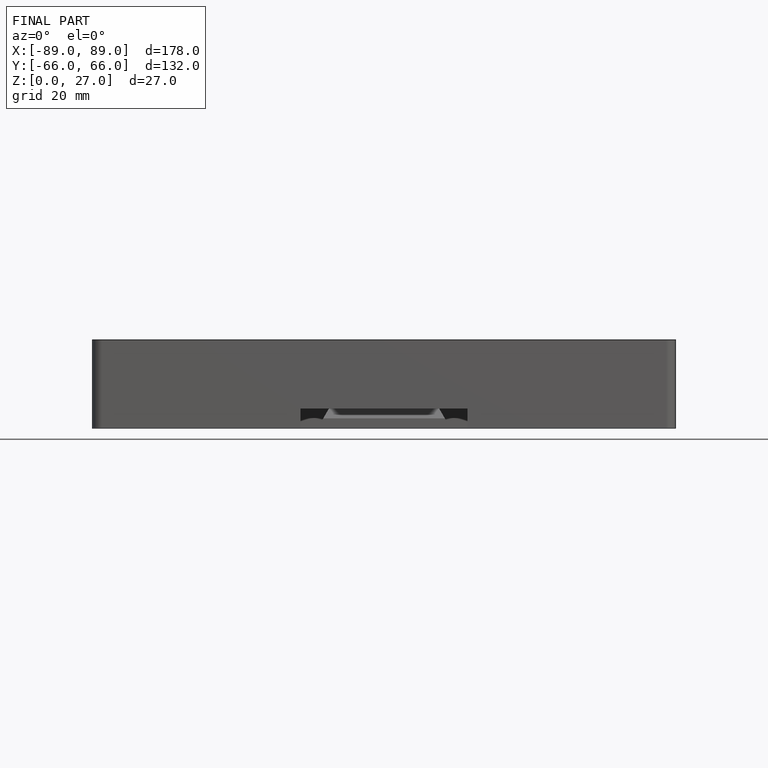
[diagram: finished part — front view with bounding-box wireframe]
